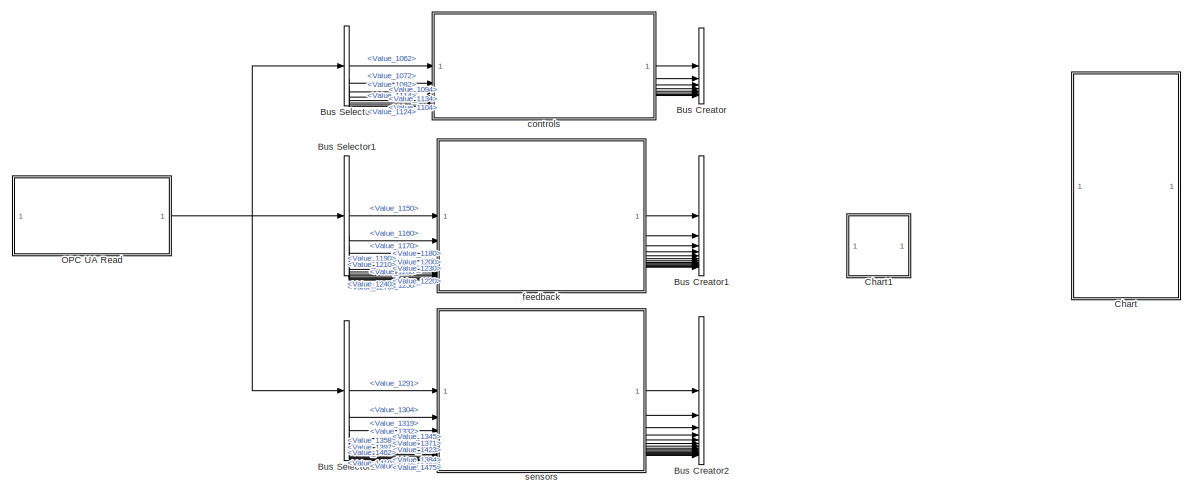
[diagram: root canvas - part 1/2, full width, top band]
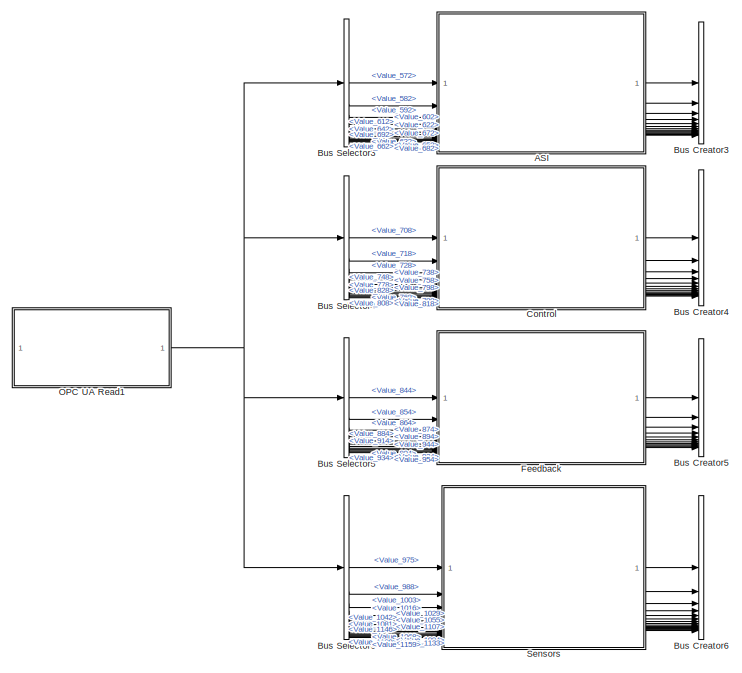
[diagram: root canvas - part 2/2, bottom left region]
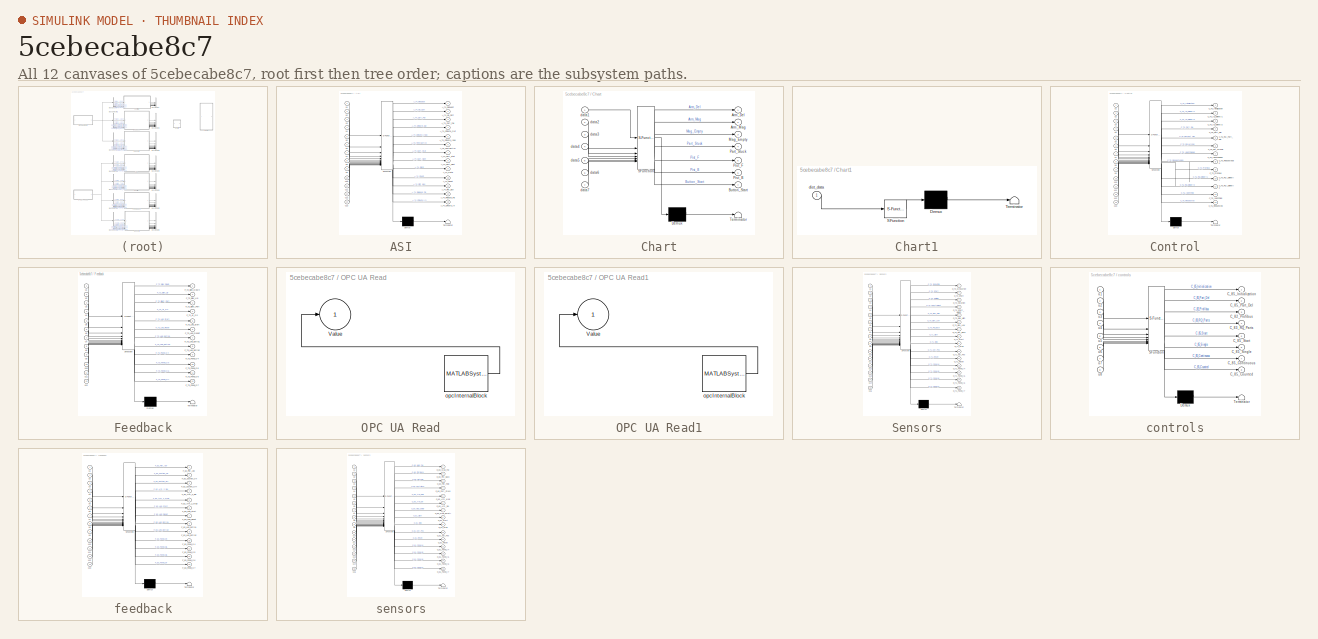
[diagram: thumbnail index - all 12 canvases of the model, root first then tree order]
MODEL slx_5cebecabe8c7
KIND model
CONFIG AbsTol = auto
CONFIG EnableMultiTasking = off
CONFIG FixedStep = auto
CONFIG MaxStep = auto
CONFIG MinStep = auto
CONFIG RelTol = 1e-3
CONFIG SampleTimeConstraint = Unconstrained
CONFIG SolverName = VariableStepAuto
CONFIG StartTime = 0.0
CONFIG StopTime = inf
BLOCK [SubSystem] ASI
  ErrorFcn = Stateflow.Translate.translate
  PermitHierarchicalResolution = ExplicitOnly
  SFBlockType = MATLAB Function
  TreatAsAtomicUnit = on
BLOCK [Demux] ASI/ Demux 
  Outputs = 1
BLOCK [S-Function] ASI/ SFunction 
  EnableBusSupport = off
  FunctionName = sf_sfun
  PortCounts = [13 14]
  SFcnIsStateOwnerBlock = off
  SFunctionDeploymentMode = off
  Tag = Stateflow S-Function 3
BLOCK [Terminator] ASI/ Terminator 
BLOCK [Outport] ASI/A_73_TestCartID
  Port = 6
BLOCK [Outport] ASI/A_74_CRoute_In
  Port = 13
BLOCK [Outport] ASI/A_74_CRoute_In80
  Port = 5
BLOCK [Outport] ASI/A_74_CRoute_Out
  Port = 4
BLOCK [Outport] ASI/A_74_Cart_Full
  Port = 3
BLOCK [Outport] ASI/A_74_Cart_Next
  Port = 8
BLOCK [Outport] ASI/A_74_Cart_Stat
  Port = 7
BLOCK [Outport] ASI/A_74_Count
  Port = 10
BLOCK [Outport] ASI/A_74_No_Cart
  Port = 2
BLOCK [Outport] ASI/A_74_Optic
  Port = 9
BLOCK [Outport] ASI/A_74_Pist_Bck
  Port = 11
BLOCK [Outport] ASI/A_74_Release_FB
  Port = 12
BLOCK [Outport] ASI/A_74_Request
BLOCK [Inport] ASI/u1
BLOCK [Inport] ASI/u10
  Port = 10
BLOCK [Inport] ASI/u11
  Port = 11
BLOCK [Inport] ASI/u12
  Port = 12
BLOCK [Inport] ASI/u13
  Port = 13
BLOCK [Inport] ASI/u2
  Port = 2
BLOCK [Inport] ASI/u3
  Port = 3
BLOCK [Inport] ASI/u4
  Port = 4
BLOCK [Inport] ASI/u5
  Port = 5
BLOCK [Inport] ASI/u6
  Port = 6
BLOCK [Inport] ASI/u7
  Port = 7
BLOCK [Inport] ASI/u8
  Port = 8
BLOCK [Inport] ASI/u9
  Port = 9
BLOCK [BusCreator] Bus Creator
  DisplayOption = bar
  InheritFromInputs = on
  Inputs = 8
BLOCK [BusCreator] Bus Creator1
  DisplayOption = bar
  InheritFromInputs = on
  Inputs = 13
BLOCK [BusCreator] Bus Creator2
  DisplayOption = bar
  InheritFromInputs = on
  Inputs = 15
BLOCK [BusCreator] Bus Creator3
  DisplayOption = bar
  InheritFromInputs = on
  Inputs = 13
BLOCK [BusCreator] Bus Creator4
  DisplayOption = bar
  InheritFromInputs = on
  Inputs = 13
BLOCK [BusCreator] Bus Creator5
  DisplayOption = bar
  InheritFromInputs = on
  Inputs = 12
BLOCK [BusCreator] Bus Creator6
  DisplayOption = bar
  InheritFromInputs = on
  Inputs = 15
BLOCK [BusSelector] Bus Selector
  OutputSignals = Value_1062,Value_1072,Value_1082,Value_1094,Value_1104,Value_1114,Value_1124,Value_1134
BLOCK [BusSelector] Bus Selector1
  OutputSignals = Value_1150,Value_1160,Value_1170,Value_1180,Value_1190,Value_1200,Value_1210,Value_1220,Value_1230,Value_1240,Value_1250,Value_1260,Value_1270
BLOCK [BusSelector] Bus Selector2
  OutputSignals = Value_1291,Value_1304,Value_1319,Value_1332,Value_1345,Value_1358,Value_1371,Value_1384,Value_1397,Value_1410,Value_1423,Value_1436,Value_1449,Value_1462,Value_1475
BLOCK [BusSelector] Bus Selector3
  OutputSignals = Value_572,Value_582,Value_592,Value_602,Value_612,Value_622,Value_632,Value_642,Value_652,Value_662,Value_672,Value_682,Value_692
BLOCK [BusSelector] Bus Selector4
  OutputSignals = Value_708,Value_718,Value_728,Value_738,Value_748,Value_758,Value_768,Value_778,Value_788,Value_798,Value_808,Value_818,Value_828
BLOCK [BusSelector] Bus Selector5
  OutputSignals = Value_844,Value_854,Value_864,Value_874,Value_884,Value_894,Value_904,Value_914,Value_924,Value_934,Value_944,Value_954
BLOCK [BusSelector] Bus Selector6
  OutputSignals = Value_975,Value_988,Value_1003,Value_1016,Value_1029,Value_1042,Value_1055,Value_1068,Value_1081,Value_1094,Value_1107,Value_1120,Value_1133,Value_1146,Value_1159
BLOCK [SubSystem] Chart
  ErrorFcn = Stateflow.Translate.translate
  PermitHierarchicalResolution = ExplicitOnly
  SFBlockType = Chart
  TreatAsAtomicUnit = on
BLOCK [Demux] Chart/ Demux 
  Outputs = 1
BLOCK [S-Function] Chart/ SFunction 
  EnableBusSupport = off
  FunctionName = sf_sfun
  PortCounts = [7 8]
  SFcnIsStateOwnerBlock = off
  SFunctionDeploymentMode = off
  Tag = Stateflow S-Function 8
BLOCK [Terminator] Chart/ Terminator 
BLOCK [Outport] Chart/Arm_Del
BLOCK [Outport] Chart/Arm_Mag
  Port = 2
BLOCK [Outport] Chart/Button_Start
  Port = 7
BLOCK [Outport] Chart/Mag_Empty
  Port = 3
BLOCK [Outport] Chart/Part_Stuck
  Port = 4
BLOCK [Outport] Chart/Pist_B
  Port = 6
BLOCK [Outport] Chart/Pist_F
  Port = 5
BLOCK [Inport] Chart/data1
BLOCK [Inport] Chart/data2
  Port = 2
BLOCK [Inport] Chart/data3
  Port = 3
BLOCK [Inport] Chart/data4
  Port = 4
BLOCK [Inport] Chart/data5
  Port = 5
BLOCK [Inport] Chart/data6
  Port = 6
BLOCK [Inport] Chart/data7
  Port = 7
BLOCK [SubSystem] Chart1
  ErrorFcn = Stateflow.Translate.translate
  PermitHierarchicalResolution = ExplicitOnly
  SFBlockType = Chart
  TreatAsAtomicUnit = on
BLOCK [Demux] Chart1/ Demux 
  Outputs = 1
BLOCK [S-Function] Chart1/ SFunction 
  EnableBusSupport = off
  FunctionName = sf_sfun
  PortCounts = [1 1]
  SFcnIsStateOwnerBlock = off
  SFunctionDeploymentMode = off
  Tag = Stateflow S-Function 9
BLOCK [Terminator] Chart1/ Terminator 
BLOCK [Inport] Chart1/dist_data
BLOCK [SubSystem] Control
  ErrorFcn = Stateflow.Translate.translate
  PermitHierarchicalResolution = ExplicitOnly
  SFBlockType = MATLAB Function
  TreatAsAtomicUnit = on
BLOCK [Demux] Control/ Demux 
  Outputs = 1
BLOCK [S-Function] Control/ SFunction 
  EnableBusSupport = off
  FunctionName = sf_sfun
  PortCounts = [13 14]
  SFcnIsStateOwnerBlock = off
  SFunctionDeploymentMode = off
  Tag = Stateflow S-Function 5
BLOCK [Terminator] Control/ Terminator 
BLOCK [Outport] Control/C_72_Profibus
  Port = 9
BLOCK [Outport] Control/C_75_ID_Delivery1
  Port = 2
BLOCK [Outport] Control/C_75_ID_Delivery2
  Port = 3
BLOCK [Outport] Control/C_75_Identified
  Port = 12
BLOCK [Outport] Control/C_75_Identified80
  Port = 7
BLOCK [Outport] Control/C_75_Initialization
BLOCK [Outport] Control/C_75_Part_Del
  Port = 4
BLOCK [Outport] Control/C_75_RQ_Delivery1
  Port = 10
BLOCK [Outport] Control/C_75_RQ_Delivery2
  Port = 11
BLOCK [Outport] Control/C_75_RQ_Part_Del
  Port = 5
BLOCK [Outport] Control/C_75_RQ_Wrong
  Port = 6
BLOCK [Outport] Control/C_75_Requested
  Port = 13
BLOCK [Outport] Control/C_75_Requested80
  Port = 8
BLOCK [Inport] Control/u1
BLOCK [Inport] Control/u10
  Port = 10
BLOCK [Inport] Control/u11
  Port = 11
BLOCK [Inport] Control/u12
  Port = 12
BLOCK [Inport] Control/u13
  Port = 13
BLOCK [Inport] Control/u2
  Port = 2
BLOCK [Inport] Control/u3
  Port = 3
BLOCK [Inport] Control/u4
  Port = 4
BLOCK [Inport] Control/u5
  Port = 5
BLOCK [Inport] Control/u6
  Port = 6
BLOCK [Inport] Control/u7
  Port = 7
BLOCK [Inport] Control/u8
  Port = 8
BLOCK [Inport] Control/u9
  Port = 9
BLOCK [SubSystem] Feedback
  ErrorFcn = Stateflow.Translate.translate
  PermitHierarchicalResolution = ExplicitOnly
  SFBlockType = MATLAB Function
  TreatAsAtomicUnit = on
BLOCK [Demux] Feedback/ Demux 
  Outputs = 1
BLOCK [S-Function] Feedback/ SFunction 
  EnableBusSupport = off
  FunctionName = sf_sfun
  PortCounts = [12 13]
  SFcnIsStateOwnerBlock = off
  SFunctionDeploymentMode = off
  Tag = Stateflow S-Function 6
BLOCK [Terminator] Feedback/ Terminator 
BLOCK [Outport] Feedback/F_72_Air_On
  Port = 4
BLOCK [Outport] Feedback/F_72_Eject_Part
  Port = 3
BLOCK [Outport] Feedback/F_72_Elev_Down
BLOCK [Outport] Feedback/F_72_Elev_Up
  Port = 2
BLOCK [Outport] Feedback/F_73_Led_Extra1
  Port = 7
BLOCK [Outport] Feedback/F_73_Led_Extra2
  Port = 8
BLOCK [Outport] Feedback/F_73_Led_Reset
  Port = 6
BLOCK [Outport] Feedback/F_73_Led_Start
  Port = 5
BLOCK [Outport] Feedback/F_73_Panel_O4
  Port = 9
BLOCK [Outport] Feedback/F_73_Panel_O5
  Port = 10
BLOCK [Outport] Feedback/F_73_Panel_O6
  Port = 11
BLOCK [Outport] Feedback/F_73_Panel_O7
  Port = 12
BLOCK [Inport] Feedback/u1
BLOCK [Inport] Feedback/u10
  Port = 10
BLOCK [Inport] Feedback/u11
  Port = 11
BLOCK [Inport] Feedback/u12
  Port = 12
BLOCK [Inport] Feedback/u2
  Port = 2
BLOCK [Inport] Feedback/u3
  Port = 3
BLOCK [Inport] Feedback/u4
  Port = 4
BLOCK [Inport] Feedback/u5
  Port = 5
BLOCK [Inport] Feedback/u6
  Port = 6
BLOCK [Inport] Feedback/u7
  Port = 7
BLOCK [Inport] Feedback/u8
  Port = 8
BLOCK [Inport] Feedback/u9
  Port = 9
BLOCK [SubSystem] OPC UA Read
  MaskHideContents = on
  PreCopyFcn = opcuasrc.opcuamasks.opcUaBlksPreCopyFcn
BLOCK [Outport] OPC UA Read/Value
BLOCK [MATLABSystem] OPC UA Read/opcInternalBlock
  MaskType = opcUARead
  NodeTableValue = { '1', 'Value', '6', '1062', '1'; '2', 'Value', '6', '1072', '1'; '3', 'Value', '6', '1082', '1'; '4', 'Value', '6', '1094', '1'; '5', 'Value', '6', '1104', '1'; '6', 'Value', '6', '1114', '1'; '7', 'Value', '6', '1124', '1'; '8', 'Value', '6', '1134', '1'; '9', 'Value', '6', '1150', '1'; '10', 'Value', '6', '1160', '1'; '11', 'Value', '6', '1170', '1'; '12', 'Value', '6', '1180', '1'; '13', 'Valu...<+781ch>
  SampleTime = SampleTime
  ShowQualityPort = off
  ShowTimestampPort = off
  SimulateUsing = Interpreted execution
  System = opcUARead
  TimestampFormatInSeconds = on
  UAClientSelected = AAS OPC Distribution
BLOCK [SubSystem] OPC UA Read1
  MaskHideContents = on
  PreCopyFcn = opcuasrc.opcuamasks.opcUaBlksPreCopyFcn
BLOCK [Outport] OPC UA Read1/Value
BLOCK [MATLABSystem] OPC UA Read1/opcInternalBlock
  MaskType = opcUARead
  NodeTableValue = { '1', 'Value', '6', '572', '1'; '2', 'Value', '6', '582', '1'; '3', 'Value', '6', '592', '1'; '4', 'Value', '6', '602', '1'; '5', 'Value', '6', '612', '1'; '6', 'Value', '6', '622', '1'; '7', 'Value', '6', '632', '1'; '8', 'Value', '6', '642', '1'; '9', 'Value', '6', '652', '1'; '10', 'Value', '6', '662', '1'; '11', 'Value', '6', '672', '1'; '12', 'Value', '6', '682', '1'; '13', 'Value', '6', '69...<+1302ch>
  SampleTime = SampleTime
  ShowQualityPort = off
  ShowTimestampPort = off
  SimulateUsing = Interpreted execution
  System = opcUARead
  TimestampFormatInSeconds = on
  UAClientSelected = AAS OPC Testing
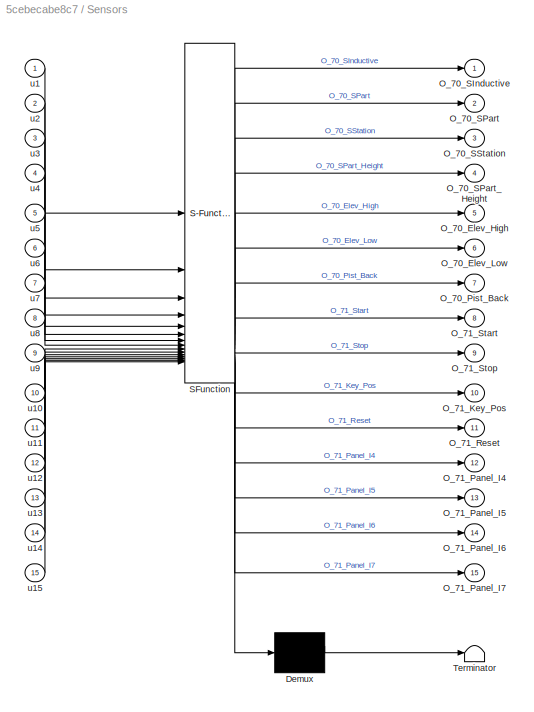
BLOCK [SubSystem] Sensors
  ErrorFcn = Stateflow.Translate.translate
  PermitHierarchicalResolution = ExplicitOnly
  SFBlockType = MATLAB Function
  TreatAsAtomicUnit = on
BLOCK [Demux] Sensors/ Demux 
  Outputs = 1
BLOCK [S-Function] Sensors/ SFunction 
  EnableBusSupport = off
  FunctionName = sf_sfun
  PortCounts = [15 16]
  SFcnIsStateOwnerBlock = off
  SFunctionDeploymentMode = off
  Tag = Stateflow S-Function 7
BLOCK [Terminator] Sensors/ Terminator 
BLOCK [Outport] Sensors/O_70_Elev_High
  Port = 5
BLOCK [Outport] Sensors/O_70_Elev_Low
  Port = 6
BLOCK [Outport] Sensors/O_70_Pist_Back
  Port = 7
BLOCK [Outport] Sensors/O_70_SInductive
BLOCK [Outport] Sensors/O_70_SPart
  Port = 2
BLOCK [Outport] Sensors/O_70_SPart_Height
  Port = 4
BLOCK [Outport] Sensors/O_70_SStation
  Port = 3
BLOCK [Outport] Sensors/O_71_Key_Pos
  Port = 10
BLOCK [Outport] Sensors/O_71_Panel_I4
  Port = 12
BLOCK [Outport] Sensors/O_71_Panel_I5
  Port = 13
BLOCK [Outport] Sensors/O_71_Panel_I6
  Port = 14
BLOCK [Outport] Sensors/O_71_Panel_I7
  Port = 15
BLOCK [Outport] Sensors/O_71_Reset
  Port = 11
BLOCK [Outport] Sensors/O_71_Start
  Port = 8
BLOCK [Outport] Sensors/O_71_Stop
  Port = 9
BLOCK [Inport] Sensors/u1
BLOCK [Inport] Sensors/u10
  Port = 10
BLOCK [Inport] Sensors/u11
  Port = 11
BLOCK [Inport] Sensors/u12
  Port = 12
BLOCK [Inport] Sensors/u13
  Port = 13
BLOCK [Inport] Sensors/u14
  Port = 14
BLOCK [Inport] Sensors/u15
  Port = 15
BLOCK [Inport] Sensors/u2
  Port = 2
BLOCK [Inport] Sensors/u3
  Port = 3
BLOCK [Inport] Sensors/u4
  Port = 4
BLOCK [Inport] Sensors/u5
  Port = 5
BLOCK [Inport] Sensors/u6
  Port = 6
BLOCK [Inport] Sensors/u7
  Port = 7
BLOCK [Inport] Sensors/u8
  Port = 8
BLOCK [Inport] Sensors/u9
  Port = 9
BLOCK [SubSystem] controls
  ErrorFcn = Stateflow.Translate.translate
  PermitHierarchicalResolution = ExplicitOnly
  SFBlockType = MATLAB Function
  TreatAsAtomicUnit = on
BLOCK [Demux] controls/ Demux 
  Outputs = 1
BLOCK [S-Function] controls/ SFunction 
  EnableBusSupport = off
  FunctionName = sf_sfun
  PortCounts = [8 9]
  SFcnIsStateOwnerBlock = off
  SFunctionDeploymentMode = off
  Tag = Stateflow S-Function 2
BLOCK [Terminator] controls/ Terminator 
BLOCK [Outport] controls/C_82_Profibus
  Port = 3
BLOCK [Outport] controls/C_83_RQ_Parts
  Port = 4
BLOCK [Outport] controls/C_85_Continuous
  Port = 7
BLOCK [Outport] controls/C_85_Counted
  Port = 8
BLOCK [Outport] controls/C_85_Initialization
BLOCK [Outport] controls/C_85_Part_Del
  Port = 2
BLOCK [Outport] controls/C_85_Single
  Port = 6
BLOCK [Outport] controls/C_85_Start
  Port = 5
BLOCK [Inport] controls/u1
BLOCK [Inport] controls/u2
  Port = 2
BLOCK [Inport] controls/u3
  Port = 3
BLOCK [Inport] controls/u4
  Port = 4
BLOCK [Inport] controls/u5
  Port = 5
BLOCK [Inport] controls/u6
  Port = 6
BLOCK [Inport] controls/u7
  Port = 7
BLOCK [Inport] controls/u8
  Port = 8
BLOCK [SubSystem] feedback
  ErrorFcn = Stateflow.Translate.translate
  PermitHierarchicalResolution = ExplicitOnly
  SFBlockType = MATLAB Function
  TreatAsAtomicUnit = on
BLOCK [Demux] feedback/ Demux 
  Outputs = 1
BLOCK [S-Function] feedback/ SFunction 
  EnableBusSupport = off
  FunctionName = sf_sfun
  PortCounts = [13 14]
  SFcnIsStateOwnerBlock = off
  SFunctionDeploymentMode = off
  Tag = Stateflow S-Function 1
BLOCK [Terminator] feedback/ Terminator 
BLOCK [Outport] feedback/F_82_Arm_2_Del
  Port = 4
BLOCK [Outport] feedback/F_82_Arm_2_Mag
  Port = 5
BLOCK [Outport] feedback/F_82_Pist_Adv
BLOCK [Outport] feedback/F_82_Suction_Off
  Port = 3
BLOCK [Outport] feedback/F_82_Suction_On
  Port = 2
BLOCK [Outport] feedback/F_83_Led_Extra1
  Port = 8
BLOCK [Outport] feedback/F_83_Led_Extra2
  Port = 9
BLOCK [Outport] feedback/F_83_Led_Reset
  Port = 7
BLOCK [Outport] feedback/F_83_Led_Start
  Port = 6
BLOCK [Outport] feedback/F_83_Panel_O4
  Port = 10
BLOCK [Outport] feedback/F_83_Panel_O5
  Port = 11
BLOCK [Outport] feedback/F_83_Panel_O6
  Port = 12
BLOCK [Outport] feedback/F_83_Panel_O7
  Port = 13
BLOCK [Inport] feedback/u1
BLOCK [Inport] feedback/u10
  Port = 10
BLOCK [Inport] feedback/u11
  Port = 11
BLOCK [Inport] feedback/u12
  Port = 12
BLOCK [Inport] feedback/u13
  Port = 13
BLOCK [Inport] feedback/u2
  Port = 2
BLOCK [Inport] feedback/u3
  Port = 3
BLOCK [Inport] feedback/u4
  Port = 4
BLOCK [Inport] feedback/u5
  Port = 5
BLOCK [Inport] feedback/u6
  Port = 6
BLOCK [Inport] feedback/u7
  Port = 7
BLOCK [Inport] feedback/u8
  Port = 8
BLOCK [Inport] feedback/u9
  Port = 9
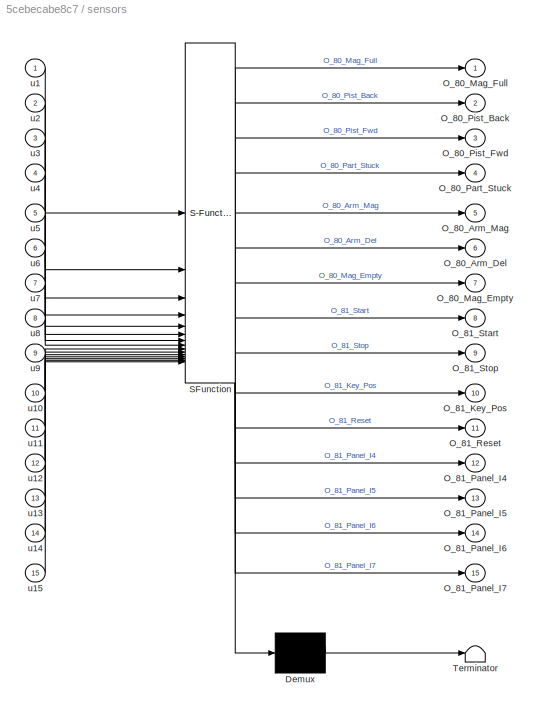
BLOCK [SubSystem] sensors
  ErrorFcn = Stateflow.Translate.translate
  PermitHierarchicalResolution = ExplicitOnly
  SFBlockType = MATLAB Function
  TreatAsAtomicUnit = on
BLOCK [Demux] sensors/ Demux 
  Outputs = 1
BLOCK [S-Function] sensors/ SFunction 
  EnableBusSupport = off
  FunctionName = sf_sfun
  PortCounts = [15 16]
  SFcnIsStateOwnerBlock = off
  SFunctionDeploymentMode = off
  Tag = Stateflow S-Function 4
BLOCK [Terminator] sensors/ Terminator 
BLOCK [Outport] sensors/O_80_Arm_Del
  Port = 6
BLOCK [Outport] sensors/O_80_Arm_Mag
  Port = 5
BLOCK [Outport] sensors/O_80_Mag_Empty
  Port = 7
BLOCK [Outport] sensors/O_80_Mag_Full
BLOCK [Outport] sensors/O_80_Part_Stuck
  Port = 4
BLOCK [Outport] sensors/O_80_Pist_Back
  Port = 2
BLOCK [Outport] sensors/O_80_Pist_Fwd
  Port = 3
BLOCK [Outport] sensors/O_81_Key_Pos
  Port = 10
BLOCK [Outport] sensors/O_81_Panel_I4
  Port = 12
BLOCK [Outport] sensors/O_81_Panel_I5
  Port = 13
BLOCK [Outport] sensors/O_81_Panel_I6
  Port = 14
BLOCK [Outport] sensors/O_81_Panel_I7
  Port = 15
BLOCK [Outport] sensors/O_81_Reset
  Port = 11
BLOCK [Outport] sensors/O_81_Start
  Port = 8
BLOCK [Outport] sensors/O_81_Stop
  Port = 9
BLOCK [Inport] sensors/u1
BLOCK [Inport] sensors/u10
  Port = 10
BLOCK [Inport] sensors/u11
  Port = 11
BLOCK [Inport] sensors/u12
  Port = 12
BLOCK [Inport] sensors/u13
  Port = 13
BLOCK [Inport] sensors/u14
  Port = 14
BLOCK [Inport] sensors/u15
  Port = 15
BLOCK [Inport] sensors/u2
  Port = 2
BLOCK [Inport] sensors/u3
  Port = 3
BLOCK [Inport] sensors/u4
  Port = 4
BLOCK [Inport] sensors/u5
  Port = 5
BLOCK [Inport] sensors/u6
  Port = 6
BLOCK [Inport] sensors/u7
  Port = 7
BLOCK [Inport] sensors/u8
  Port = 8
BLOCK [Inport] sensors/u9
  Port = 9
LINE ASI:1 -> Bus Creator3:1
LINE ASI:10 -> Bus Creator3:10
LINE ASI:11 -> Bus Creator3:11
LINE ASI:12 -> Bus Creator3:12
LINE ASI:13 -> Bus Creator3:13
LINE ASI:2 -> Bus Creator3:2
LINE ASI:3 -> Bus Creator3:3
LINE ASI:4 -> Bus Creator3:4
LINE ASI:5 -> Bus Creator3:5
LINE ASI:6 -> Bus Creator3:6
LINE ASI:7 -> Bus Creator3:7
LINE ASI:8 -> Bus Creator3:8
LINE ASI:9 -> Bus Creator3:9
LINE Bus Selector1:1 -> feedback:1
LINE Bus Selector1:10 -> feedback:10
LINE Bus Selector1:11 -> feedback:11
LINE Bus Selector1:12 -> feedback:12
LINE Bus Selector1:13 -> feedback:13
LINE Bus Selector1:2 -> feedback:2
LINE Bus Selector1:3 -> feedback:3
LINE Bus Selector1:4 -> feedback:4
LINE Bus Selector1:5 -> feedback:5
LINE Bus Selector1:6 -> feedback:6
LINE Bus Selector1:7 -> feedback:7
LINE Bus Selector1:8 -> feedback:8
LINE Bus Selector1:9 -> feedback:9
LINE Bus Selector2:1 -> sensors:1
LINE Bus Selector2:10 -> sensors:10
LINE Bus Selector2:11 -> sensors:11
LINE Bus Selector2:12 -> sensors:12
LINE Bus Selector2:13 -> sensors:13
LINE Bus Selector2:14 -> sensors:14
LINE Bus Selector2:15 -> sensors:15
LINE Bus Selector2:2 -> sensors:2
LINE Bus Selector2:3 -> sensors:3
LINE Bus Selector2:4 -> sensors:4
LINE Bus Selector2:5 -> sensors:5
LINE Bus Selector2:6 -> sensors:6
LINE Bus Selector2:7 -> sensors:7
LINE Bus Selector2:8 -> sensors:8
LINE Bus Selector2:9 -> sensors:9
LINE Bus Selector3:1 -> ASI:1
LINE Bus Selector3:10 -> ASI:10
LINE Bus Selector3:11 -> ASI:11
LINE Bus Selector3:12 -> ASI:12
LINE Bus Selector3:13 -> ASI:13
LINE Bus Selector3:2 -> ASI:2
LINE Bus Selector3:3 -> ASI:3
LINE Bus Selector3:4 -> ASI:4
LINE Bus Selector3:5 -> ASI:5
LINE Bus Selector3:6 -> ASI:6
LINE Bus Selector3:7 -> ASI:7
LINE Bus Selector3:8 -> ASI:8
LINE Bus Selector3:9 -> ASI:9
LINE Bus Selector4:1 -> Control:1
LINE Bus Selector4:10 -> Control:10
LINE Bus Selector4:11 -> Control:11
LINE Bus Selector4:12 -> Control:12
LINE Bus Selector4:13 -> Control:13
LINE Bus Selector4:2 -> Control:2
LINE Bus Selector4:3 -> Control:3
LINE Bus Selector4:4 -> Control:4
LINE Bus Selector4:5 -> Control:5
LINE Bus Selector4:6 -> Control:6
LINE Bus Selector4:7 -> Control:7
LINE Bus Selector4:8 -> Control:8
LINE Bus Selector4:9 -> Control:9
LINE Bus Selector5:1 -> Feedback:1
LINE Bus Selector5:10 -> Feedback:10
LINE Bus Selector5:11 -> Feedback:11
LINE Bus Selector5:12 -> Feedback:12
LINE Bus Selector5:2 -> Feedback:2
LINE Bus Selector5:3 -> Feedback:3
LINE Bus Selector5:4 -> Feedback:4
LINE Bus Selector5:5 -> Feedback:5
LINE Bus Selector5:6 -> Feedback:6
LINE Bus Selector5:7 -> Feedback:7
LINE Bus Selector5:8 -> Feedback:8
LINE Bus Selector5:9 -> Feedback:9
LINE Bus Selector6:1 -> Sensors:1
LINE Bus Selector6:10 -> Sensors:10
LINE Bus Selector6:11 -> Sensors:11
LINE Bus Selector6:12 -> Sensors:12
LINE Bus Selector6:13 -> Sensors:13
LINE Bus Selector6:14 -> Sensors:14
LINE Bus Selector6:15 -> Sensors:15
LINE Bus Selector6:2 -> Sensors:2
LINE Bus Selector6:3 -> Sensors:3
LINE Bus Selector6:4 -> Sensors:4
LINE Bus Selector6:5 -> Sensors:5
LINE Bus Selector6:6 -> Sensors:6
LINE Bus Selector6:7 -> Sensors:7
LINE Bus Selector6:8 -> Sensors:8
LINE Bus Selector6:9 -> Sensors:9
LINE Bus Selector:1 -> controls:1
LINE Bus Selector:2 -> controls:2
LINE Bus Selector:3 -> controls:3
LINE Bus Selector:4 -> controls:4
LINE Bus Selector:5 -> controls:5
LINE Bus Selector:6 -> controls:6
LINE Bus Selector:7 -> controls:7
LINE Bus Selector:8 -> controls:8
LINE Control:1 -> Bus Creator4:1
LINE Control:10 -> Bus Creator4:10
LINE Control:11 -> Bus Creator4:11
LINE Control:12 -> Bus Creator4:12
LINE Control:13 -> Bus Creator4:13
LINE Control:2 -> Bus Creator4:2
LINE Control:3 -> Bus Creator4:3
LINE Control:4 -> Bus Creator4:4
LINE Control:5 -> Bus Creator4:5
LINE Control:6 -> Bus Creator4:6
LINE Control:7 -> Bus Creator4:7
LINE Control:8 -> Bus Creator4:8
LINE Control:9 -> Bus Creator4:9
LINE Feedback:1 -> Bus Creator5:1
LINE Feedback:10 -> Bus Creator5:10
LINE Feedback:11 -> Bus Creator5:11
LINE Feedback:12 -> Bus Creator5:12
LINE Feedback:2 -> Bus Creator5:2
LINE Feedback:3 -> Bus Creator5:3
LINE Feedback:4 -> Bus Creator5:4
LINE Feedback:5 -> Bus Creator5:5
LINE Feedback:6 -> Bus Creator5:6
LINE Feedback:7 -> Bus Creator5:7
LINE Feedback:8 -> Bus Creator5:8
LINE Feedback:9 -> Bus Creator5:9
NET OPC UA Read1:1 -> Bus Selector3:1, Bus Selector4:1, Bus Selector5:1, Bus Selector6:1
NET OPC UA Read:1 -> Bus Selector1:1, Bus Selector2:1, Bus Selector:1
LINE Sensors:1 -> Bus Creator6:1
LINE Sensors:10 -> Bus Creator6:10
LINE Sensors:11 -> Bus Creator6:11
LINE Sensors:12 -> Bus Creator6:12
LINE Sensors:13 -> Bus Creator6:13
LINE Sensors:14 -> Bus Creator6:14
LINE Sensors:15 -> Bus Creator6:15
LINE Sensors:2 -> Bus Creator6:2
LINE Sensors:3 -> Bus Creator6:3
LINE Sensors:4 -> Bus Creator6:4
LINE Sensors:5 -> Bus Creator6:5
LINE Sensors:6 -> Bus Creator6:6
LINE Sensors:7 -> Bus Creator6:7
LINE Sensors:8 -> Bus Creator6:8
LINE Sensors:9 -> Bus Creator6:9
LINE controls:1 -> Bus Creator:1
LINE controls:2 -> Bus Creator:2
LINE controls:3 -> Bus Creator:3
LINE controls:4 -> Bus Creator:4
LINE controls:5 -> Bus Creator:5
LINE controls:6 -> Bus Creator:6
LINE controls:7 -> Bus Creator:7
LINE controls:8 -> Bus Creator:8
LINE feedback:1 -> Bus Creator1:1
LINE feedback:10 -> Bus Creator1:10
LINE feedback:11 -> Bus Creator1:11
LINE feedback:12 -> Bus Creator1:12
LINE feedback:13 -> Bus Creator1:13
LINE feedback:2 -> Bus Creator1:2
LINE feedback:3 -> Bus Creator1:3
LINE feedback:4 -> Bus Creator1:4
LINE feedback:5 -> Bus Creator1:5
LINE feedback:6 -> Bus Creator1:6
LINE feedback:7 -> Bus Creator1:7
LINE feedback:8 -> Bus Creator1:8
LINE feedback:9 -> Bus Creator1:9
LINE sensors:1 -> Bus Creator2:1
LINE sensors:10 -> Bus Creator2:10
LINE sensors:11 -> Bus Creator2:11
LINE sensors:12 -> Bus Creator2:12
LINE sensors:13 -> Bus Creator2:13
LINE sensors:14 -> Bus Creator2:14
LINE sensors:15 -> Bus Creator2:15
LINE sensors:2 -> Bus Creator2:2
LINE sensors:3 -> Bus Creator2:3
LINE sensors:4 -> Bus Creator2:4
LINE sensors:5 -> Bus Creator2:5
LINE sensors:6 -> Bus Creator2:6
LINE sensors:7 -> Bus Creator2:7
LINE sensors:8 -> Bus Creator2:8
LINE sensors:9 -> Bus Creator2:9
note: NET lines group one-source signal fan-out (src -> all destinations, sorted); 1:1 wires keep LINE
CHART sensors states=1 transitions=1
  STATE_LABEL 'eML_blk_kernel()'
  STATE_LABEL 'SCRIPT:\nfunction [O_80_Mag_Full,O_80_Pist_Back,O_80_Pist_Fwd,O_80_Part_Stuck,...\n    O_80_Arm_Mag,O_80_Arm_Del,O_80_Mag_Empty,O_81_Start,O_81_Stop,...\n    O_81_Key_Pos,O_81_Reset,O_81_Panel_I4,O_81_Panel_I5,O_81_Panel_I6,...\n    O_81_Panel_I7] = fcn_sensors(u1,u2,u3,u4,u5,u6,u7,u8,u9,...\n    u10,u11,u12,u13,u14,u15)\n\nO_80_Mag_Full = u1;\nO_80_Pist_Back = u2;\nO_80_Pist_Fwd = u3;\nO_80_Part_Stuck = u4...<+215ch>'
CHART Control states=1 transitions=1
  STATE_LABEL 'eML_blk_kernel()'
  STATE_LABEL 'SCRIPT:\nfunction [C_75_Initialization, C_75_ID_Delivery1, C_75_ID_Delivery2, ...\n          C_75_Part_Del, C_75_RQ_Part_Del, C_75_RQ_Wrong, C_75_Identified80, ...\n          C_75_Requested80, C_72_Profibus, C_75_RQ_Delivery1, C_75_RQ_Delivery2, C_75_Identified, ...\n          C_75_Requested] = fcn_Control(u1, u2, u3, u4, u5, u6, u7, u8, u9, u10, u11, u12, u13)\n\nC_75_Initialization = u1;\nC_75_ID_Deliv...<+260ch>'
CHART Feedback states=1 transitions=1
  STATE_LABEL 'eML_blk_kernel()'
  STATE_LABEL 'SCRIPT:\nfunction [F_72_Elev_Down, F_72_Elev_Up, F_72_Eject_Part, F_72_Air_On, ...\n          F_73_Led_Start, F_73_Led_Reset, F_73_Led_Extra1, F_73_Led_Extra2, ...\n          F_73_Panel_O4, F_73_Panel_O5, F_73_Panel_O6, F_73_Panel_O7] = ...\n          fcn_Feedback(u1, u2, u3, u4, u5, u6, u7, u8, u9, u10, u11, u12)\n\nF_72_Elev_Down = u1;\nF_72_Elev_Up = u2;\nF_72_Eject_Part = u3;\nF_72_Air_On = u4;\nF_73_Le...<+161ch>'
CHART Sensors states=1 transitions=1
  STATE_LABEL 'eML_blk_kernel()'
  STATE_LABEL 'SCRIPT:\nfunction [O_70_SInductive, O_70_SPart, O_70_SStation, O_70_SPart_Height, ...\n          O_70_Elev_High, O_70_Elev_Low, O_70_Pist_Back, O_71_Start, ...\n          O_71_Stop, O_71_Key_Pos, O_71_Reset, O_71_Panel_I4, O_71_Panel_I5, ...\n          O_71_Panel_I6, O_71_Panel_I7] = ...\n          fcn_Sensors(u1, u2, u3, u4, u5, u6, u7, u8, u9, u10, ...\n          u11, u12, u13, u14, u15)\n\nO_70_SInduct...<+289ch>'
CHART Chart states=9 transitions=9
  STATE_LABEL 'Init\nentry:\nButton_Start = data7;\nPist_B = data1;\nPist_F = data2;\nPart_Stuck = data3;\nArm_Mag = data4;\nArm_Del = data5;\nMag_Empty = data6;\n'
  STATE_LABEL 'Arm_2_Del\nentry:\nPist_B = 1;\nPist_F = 0;\nPart_Stuck = 0;\nArm_Mag = 0;\nArm_Del = 1;\nMag_Empty = 0;\n'
  STATE_LABEL 'Pist_Fowd\nentry:\nPist_B = 0;\nPist_F = 1;\nPart_Stuck = 0;\nArm_Mag = 0;\nArm_Del = 1;\nMag_Empty = 0;'
  STATE_LABEL 'Pist_Back\nentry:\nPist_B = 1;\nPist_F = 0;\nPart_Stuck = 0;\nArm_Mag = 0;\nArm_Del = 1;\nMag_Empty = 0;'
  STATE_LABEL 'Arm_2_Mag\nentry:\nPist_B = 1;\nPist_F = 0;\nPart_Stuck = 0;\nArm_Mag = 1;\nArm_Del = 0;\nMag_Empty = 0;'
  STATE_LABEL 'Arm_2_Mag1\nentry:\nButton_Start = 0;\nPist_B = 1;\nPist_F = 0;\nPart_Stuck = 0;\nArm_Mag = 1;\nArm_Del = 0;\nMag_Empty = 0;'
  STATE_LABEL 'Stuck_Off\nentry:\nPist_B = 1;\nPist_F = 0;\nPart_Stuck = 0;\nArm_Mag = 0;\nArm_Del = 1;\nMag_Empty = 0;'
  STATE_LABEL 'Arm_2_Del1\nentry:\nPist_B = 1;\nPist_F = 0;\nPart_Stuck = 1;\nArm_Mag = 0;\nArm_Del = 1;\nMag_Empty = 0;'
  STATE_LABEL 'Stuck_On\nentry:\nPist_B = 1;\nPist_F = 0;\nPart_Stuck = 1;\nArm_Mag = 1;\nArm_Del = 0;\nMag_Empty = 0;'
CHART Chart1 states=1 transitions=1
  STATE_LABEL 'Init\nentry:\ndist_data\nduring:\ndist_data\n'
CHART feedback states=1 transitions=1
  STATE_LABEL 'eML_blk_kernel()'
  STATE_LABEL 'SCRIPT:\nfunction [F_82_Pist_Adv,F_82_Suction_On,F_82_Suction_Off,F_82_Arm_2_Del, ...\n    F_82_Arm_2_Mag,F_83_Led_Start,F_83_Led_Reset,F_83_Led_Extra1,...\n    F_83_Led_Extra2,F_83_Panel_O4,F_83_Panel_O5,F_83_Panel_O6,...\n    F_83_Panel_O7] = fcn_feedbacks(u1,u2,u3,u4,u5,u6,u7,u8,u9,...\n    u10,u11,u12,u13)\n\nF_82_Pist_Adv = u1;\nF_82_Suction_On = u2;\nF_82_Suction_Off = u3;\nF_82_Arm_2_Del = u4;\nF_82_A...<+186ch>'
CHART controls states=1 transitions=1
  STATE_LABEL 'eML_blk_kernel()'
  STATE_LABEL 'SCRIPT:\nfunction [C_85_Initialization, C_85_Part_Del,...\n    C_82_Profibus, C_83_RQ_Parts, ...\n    C_85_Start,C_85_Single, C_85_Continuous, ...\n    C_85_Counted] = fcn_controls(u1,u2,u3,u4,u5,u6,u7,u8)\n\nC_85_Initialization = u1;\nC_85_Part_Del = u2;\nC_82_Profibus = u3;\nC_83_RQ_Parts = u4;\nC_85_Start = u5;\nC_85_Single = u6; \nC_85_Continuous = u7;\nC_85_Counted = u8;'
CHART ASI states=1 transitions=1
  STATE_LABEL 'eML_blk_kernel()'
  STATE_LABEL 'SCRIPT:\nfunction [A_74_Request, A_74_No_Cart, A_74_Cart_Full, A_74_CRoute_Out,...\n    A_74_CRoute_In80, A_73_TestCartID, A_74_Cart_Stat, ...\n          A_74_Cart_Next, A_74_Optic, A_74_Count, A_74_Pist_Bck, ...\n          A_74_Release_FB,...\n          A_74_CRoute_In] = fcn_Asi(u1, u2, u3, u4, u5, u6, u7, u8, u9,...\n          u10, u11, u12, u13)\n\nA_74_Request = u1;\nA_74_No_Cart = u2;\nA_74_Cart_Full =...<+216ch>'
CHART  states=0 transitions=0
CHART  states=0 transitions=0
CHART  states=0 transitions=0
CHART  states=0 transitions=0
CHART  states=0 transitions=0
CHART  states=0 transitions=0
CHART  states=0 transitions=0
CHART  states=0 transitions=0
CHART  states=0 transitions=0
